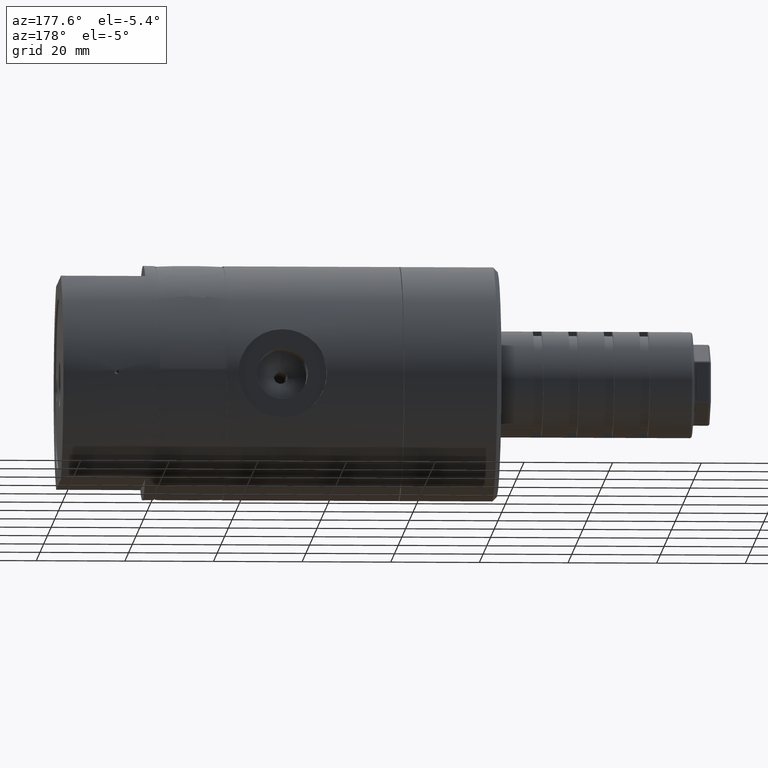
[diagram: clean part render]
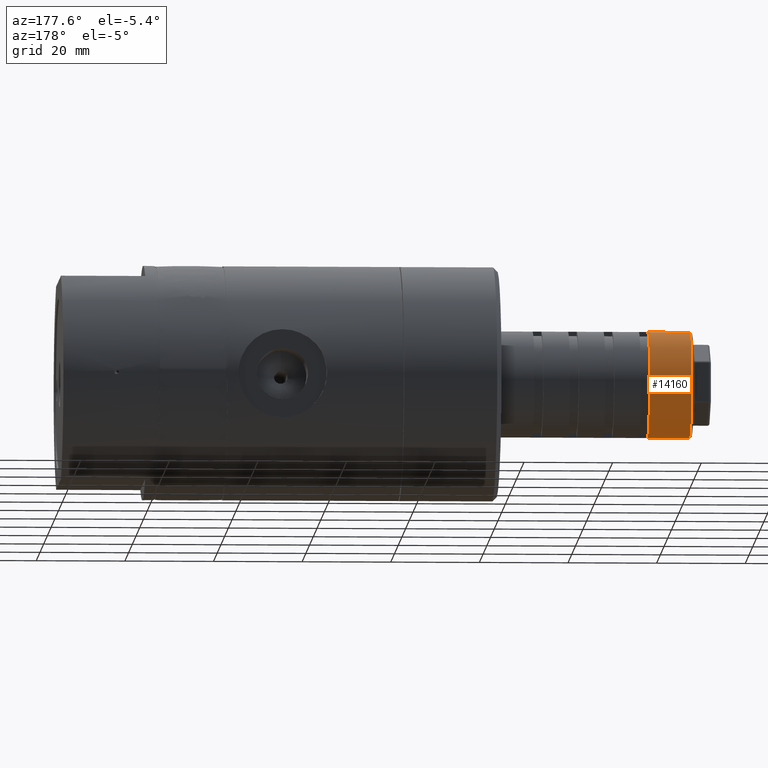
[diagram: same view with one face highlighted and labeled with its STEP entity id]
A machine part, auxiliary view. The second image highlights one B-rep face of the part: STEP entity #14160.
In plain terms, the highlighted cylindrical surface (partial cylindrical patch) has radius 12 mm, axis along (1, 0, 0).
Its self-contained STEP definition (entity closure, byte-faithful):
#158 = CIRCLE ( 'NONE', #9987, 12.00000000000000000 ) ;
#659 = ORIENTED_EDGE ( 'NONE', *, *, #16494, .T. ) ;
#907 = DIRECTION ( 'NONE',  ( 0.0000000000000000000, 2.775557561562890400E-016, 1.000000000000000000 ) ) ;
#974 = EDGE_CURVE ( 'NONE', #10519, #16760, #20780, .T. ) ;
#1191 = CARTESIAN_POINT ( 'NONE',  ( -132.8999999999999800, 0.0000000000000000000, 0.0000000000000000000 ) ) ;
#3264 = DIRECTION ( 'NONE',  ( 1.000000000000000000, 0.0000000000000000000, 0.0000000000000000000 ) ) ;
#4252 = CARTESIAN_POINT ( 'NONE',  ( -142.4000000000000100, 4.800245232852292200E-015, 12.00000000000000000 ) ) ;
#4337 = CIRCLE ( 'NONE', #14228, 12.00000000000000000 ) ;
#4673 = CYLINDRICAL_SURFACE ( 'NONE', #16283, 12.00000000000000000 ) ;
#4988 = CARTESIAN_POINT ( 'NONE',  ( -132.8999999999999800, -1.861092914898645100E-015, -12.00000000000000000 ) ) ;
#5016 = VECTOR ( 'NONE', #6916, 1000.000000000000000 ) ;
#5414 = EDGE_LOOP ( 'NONE', ( #21086, #19810, #659, #6271 ) ) ;
#5875 = DIRECTION ( 'NONE',  ( -1.000000000000000000, 0.0000000000000000000, 0.0000000000000000000 ) ) ;
#6271 = ORIENTED_EDGE ( 'NONE', *, *, #12296, .F. ) ;
#6916 = DIRECTION ( 'NONE',  ( 1.000000000000000000, 0.0000000000000000000, 0.0000000000000000000 ) ) ;
#7388 = CARTESIAN_POINT ( 'NONE',  ( -142.4000000000000100, 0.0000000000000000000, 0.0000000000000000000 ) ) ;
#9808 = EDGE_CURVE ( 'NONE', #19379, #10519, #158, .T. ) ;
#9950 = LINE ( 'NONE', #16902, #5016 ) ;
#9987 = AXIS2_PLACEMENT_3D ( 'NONE', #7388, #10703, #19000 ) ;
#10519 = VERTEX_POINT ( 'NONE', #4252 ) ;
#10689 = DIRECTION ( 'NONE',  ( 1.000000000000000000, 0.0000000000000000000, 0.0000000000000000000 ) ) ;
#10703 = DIRECTION ( 'NONE',  ( 1.000000000000000000, -0.0000000000000000000, -0.0000000000000000000 ) ) ;
#11886 = CARTESIAN_POINT ( 'NONE',  ( -132.8999999999999800, 3.330669073875470000E-015, 12.00000000000000000 ) ) ;
#12296 = EDGE_CURVE ( 'NONE', #19379, #15575, #9950, .T. ) ;
#14160 = ADVANCED_FACE ( 'NONE', ( #16066 ), #4673, .T. ) ;
#14228 = AXIS2_PLACEMENT_3D ( 'NONE', #1191, #5875, #907 ) ;
#15072 = VECTOR ( 'NONE', #3264, 1000.000000000000000 ) ;
#15575 = VERTEX_POINT ( 'NONE', #4988 ) ;
#16066 = FACE_OUTER_BOUND ( 'NONE', #5414, .T. ) ;
#16283 = AXIS2_PLACEMENT_3D ( 'NONE', #20612, #10689, #18986 ) ;
#16494 = EDGE_CURVE ( 'NONE', #16760, #15575, #4337, .T. ) ;
#16760 = VERTEX_POINT ( 'NONE', #11886 ) ;
#16902 = CARTESIAN_POINT ( 'NONE',  ( -142.9000000000000100, -3.330669073875468400E-015, -12.00000000000000000 ) ) ;
#18986 = DIRECTION ( 'NONE',  ( 0.0000000000000000000, -2.775557561562890400E-016, -1.000000000000000000 ) ) ;
#19000 = DIRECTION ( 'NONE',  ( 0.0000000000000000000, 2.775557561562890400E-016, 1.000000000000000000 ) ) ;
#19379 = VERTEX_POINT ( 'NONE', #19500 ) ;
#19500 = CARTESIAN_POINT ( 'NONE',  ( -142.4000000000000100, -3.330669073875468400E-015, -12.00000000000000000 ) ) ;
#19810 = ORIENTED_EDGE ( 'NONE', *, *, #974, .T. ) ;
#20612 = CARTESIAN_POINT ( 'NONE',  ( -142.9000000000000100, 0.0000000000000000000, 0.0000000000000000000 ) ) ;
#20780 = LINE ( 'NONE', #21317, #15072 ) ;
#21086 = ORIENTED_EDGE ( 'NONE', *, *, #9808, .T. ) ;
#21317 = CARTESIAN_POINT ( 'NONE',  ( -142.9000000000000100, 4.800245232852292200E-015, 12.00000000000000000 ) ) ;